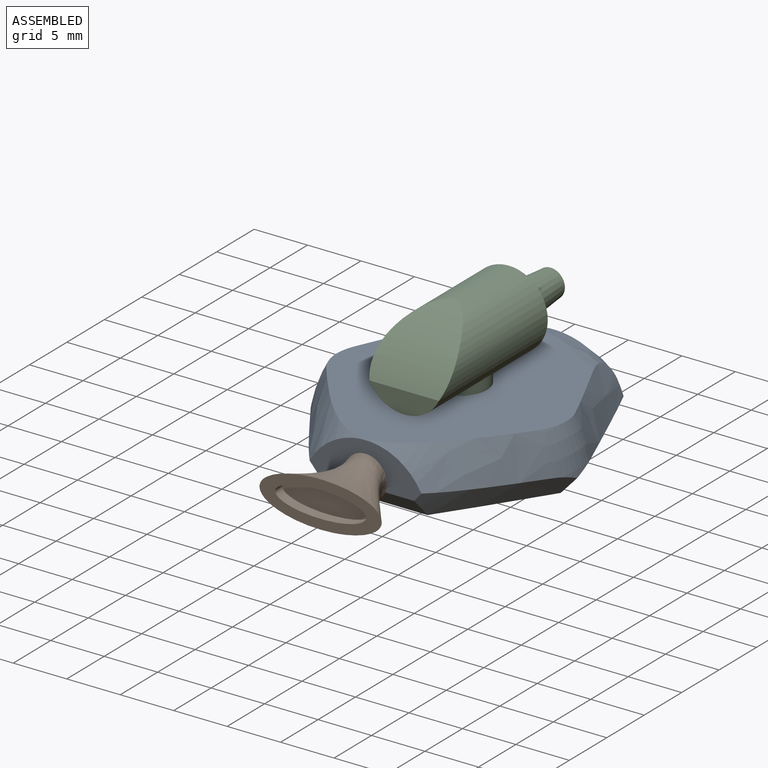
[diagram: assembled view]
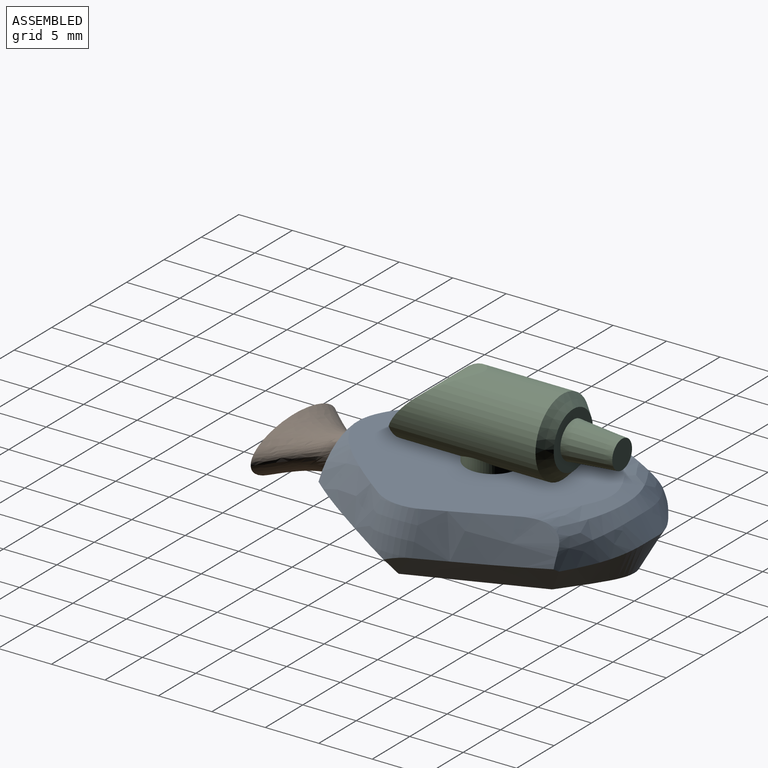
[diagram: assembled view, second angle]
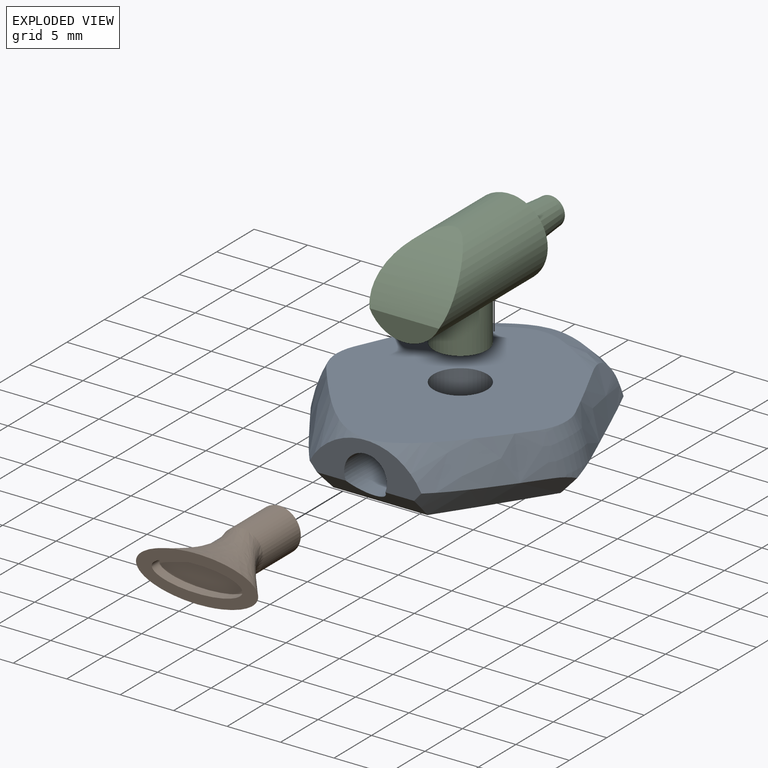
[diagram: exploded view]
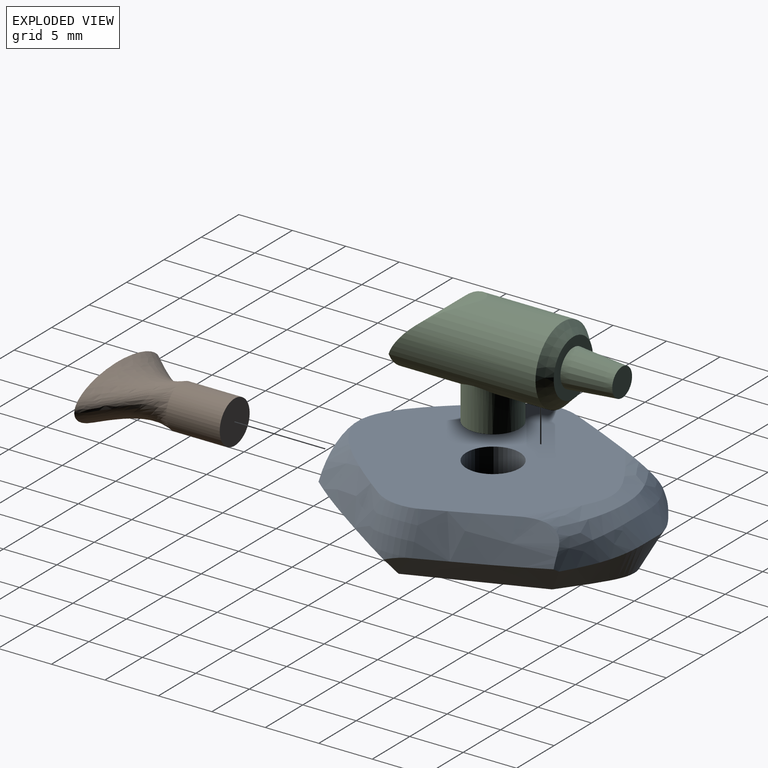
[diagram: exploded view, second angle]
ASSEMBLY  parts=3 mates=2
PART A: 21 faces, bbox 26.8x28.4x12 mm
  f0: cone r=0mm half-angle=51.6deg, axis (0,-1,0), area 30.6mm2, adj f2,f3,f9,f11,f12,f13,f14
  f1: cone r=12.87mm half-angle=32.4deg, axis (0,1,0), area 82.1mm2, adj f4,f6,f7,f10,f15,f16
  f2: cone r=8.02mm half-angle=20.8deg, axis (0,-1,0), area 41.5mm2, adj f0,f6,f9,f14,f15
  f3: cone r=8.02mm half-angle=20.8deg, axis (0,-1,0), area 41.5mm2, adj f0,f6,f12,f14,f16
  f4: plane 10.46x3.93mm, normal (0,-1,0), area 21.8mm2, adj f1,f7,f8,f10,f17
  f5: plane 24.31x21.35mm, normal (0,0,-1), area 346.9mm2, adj f7,f8,f9,f10,f11,f12,f13
  f6: plane 23.94x21.74mm, normal (0,0,1), area 332.5mm2, adj f1,f2,f3,f14,f15,f16,f19
  f7: bspline ~13.16x9.72mm, area 38.3mm2, adj f1,f4,f5,f8,f9,f15
  f8: plane 9.27x2.16mm, normal (0,-0.71,-0.71), area 20.8mm2, adj f4,f5,f7,f10,f17
  f9: bspline ~13.59x6.9mm, area 40.2mm2, adj f0,f2,f5,f7,f11,f15
  f10: bspline ~13.16x9.72mm, area 38.3mm2, adj f1,f4,f5,f8,f12,f16
  f11: bspline ~7.29x5.08mm, area 25.3mm2, adj f0,f5,f9,f13
  f12: bspline ~13.59x6.9mm, area 40.2mm2, adj f0,f3,f5,f10,f13,f16
  f13: bspline ~8.17x5.74mm, area 25.3mm2, adj f0,f5,f11,f12
  f14: bspline ~20.24x7.31mm, area 53.5mm2, adj f0,f2,f3,f6
  f15: torus R=7.3mm, axis (0,-1,0), area 19.4mm2, adj f1,f2,f6,f7,f9
  f16: torus R=7.3mm, axis (0,-1,0), area 19.4mm2, adj f1,f3,f6,f10,f12
  f17: cylinder r=2mm len=5mm, axis (0,-1,0), area 59.1mm2, adj f4,f8,f18
  f18: plane 4x4mm, normal (0,-1,0), area 12.6mm2, adj f17
  f19: cylinder r=2.5mm len=5mm, axis (0,0,1), area 62.8mm2, adj f6,f20
  f20: plane 5x5mm, normal (0,0,1), area 19.6mm2, adj f19
PART B: 6 faces, bbox 11.5x11x4.3 mm
  f0: cylinder r=2mm len=5mm, axis (0,1,0), area 62.8mm2, adj f1,f3
  f1: plane 4x4mm, normal (0,1,0), area 12.6mm2, adj f0
  f2: plane 11.46x4.29mm, normal (0,-1,0), area 22mm2, adj f3,f4
  f3: bspline ~11.42x6mm, area 109.9mm2, adj f0,f2
  f4: extruded ~8.49x2.44mm, area 18.5mm2, adj f2,f5
  f5: plane 8.49x2.44mm, normal (0,-1,0), area 16.3mm2, adj f4
PART C: 9 faces, bbox 7.2x19.6x10.1 mm
  f0: cylinder r=3.62mm len=14mm, axis (0,1,0), area 249.5mm2, adj f1,f2,f5,f6
  f1: plane 6.49x2.02mm, normal (0,1,0), area 9.4mm2, adj f0,f5
  f2: cylinder r=2.5mm len=5mm, axis (0,0,-1), area 52.3mm2, adj f0,f3
  f3: plane 5x5mm, normal (0,0,-1), area 19.6mm2, adj f2
  f4: plane 5.24x5.24mm, normal (0,-1,0), area 12.3mm2, adj f6,f7
  f5: cylinder r=10.59mm len=7.24mm, axis (1,0,0), area 48.7mm2, adj f0,f1
  f6: cone r=2.62mm half-angle=45deg, axis (0,1,0), area 27.7mm2, adj f0,f4
  f7: cone r=1.72mm half-angle=5deg, axis (0,1,0), area 43.9mm2, adj f4,f8
  f8: plane 2.65x2.65mm, normal (0,-1,0), area 5.5mm2, adj f7
PLACE A rot(axis=(0,0,1),0deg) t=(7.01,-7.18,-3.26)mm
PLACE B t=(7.01,-7.96,-0.48)mm
PLACE C rot(axis=(0,0,-1),180deg) t=(7.01,-0.3,0)mm
MATE revolute B.f0 <-> A.f17  axis (0,1,0) through (7.01,-10.46,-0.48)mm
MATE revolute A.f19 <-> C.f2  axis (0,0,1) through (7.01,-0.3,0.74)mm
